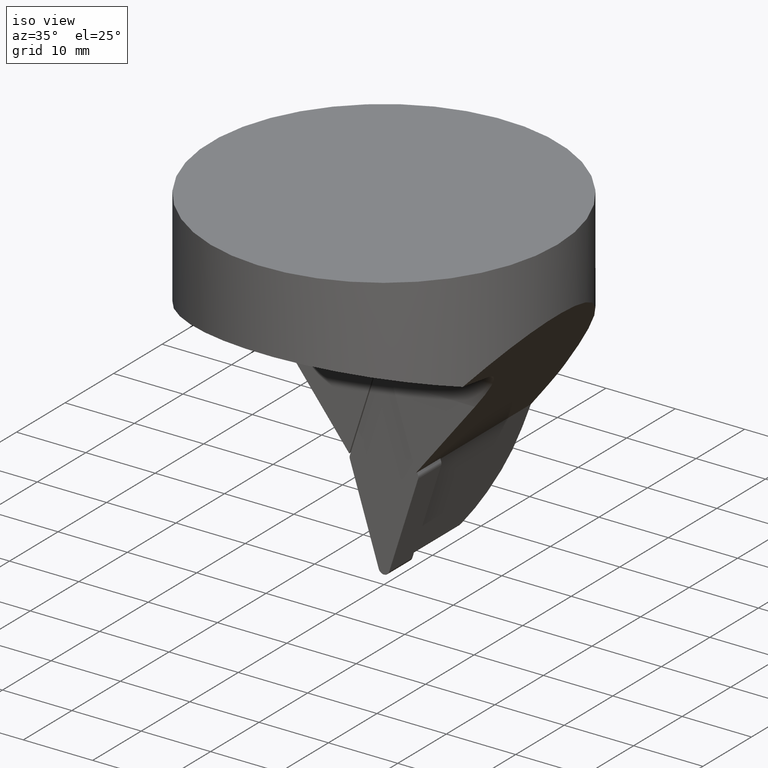
[diagram: clean part render]
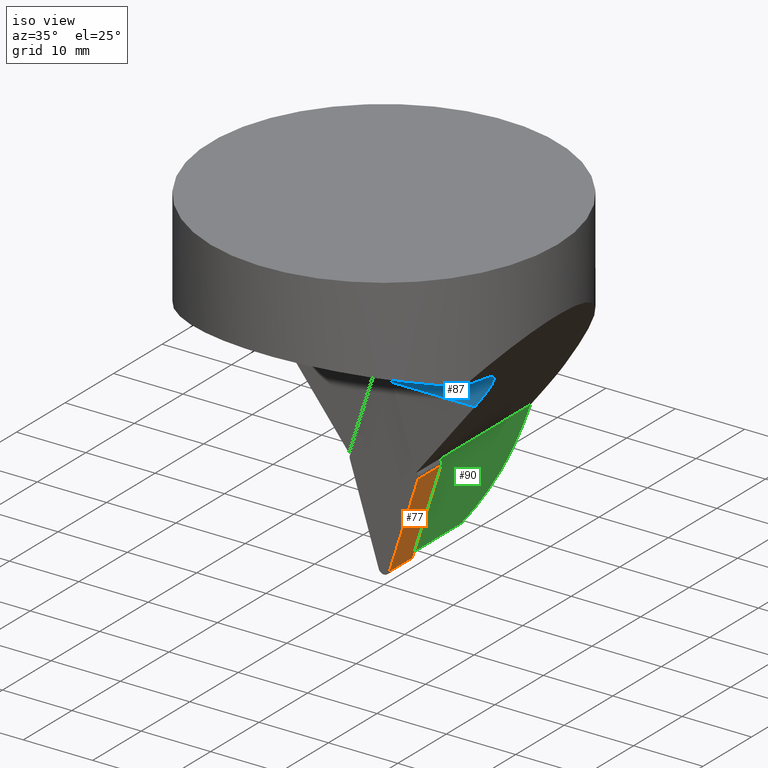
[diagram: same view with three faces highlighted in distinct colors, each labeled with its STEP entity id]
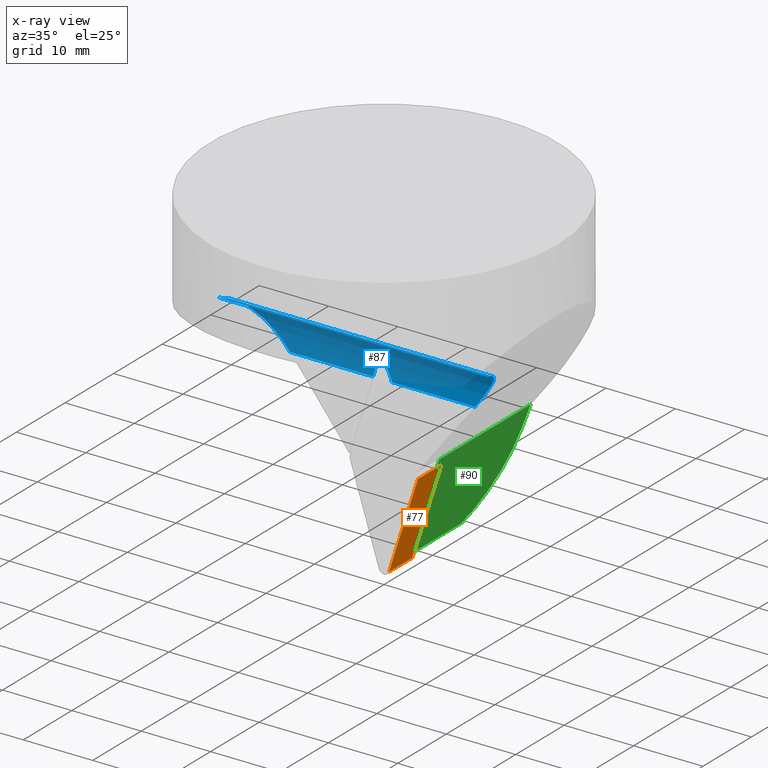
[diagram: x-ray of the same camera — body ghosted, the three highlighted faces saturated]
A machine part, iso view with three faces highlighted in distinct colors.
The next image is the same camera in x-ray (body ghosted, the three faces saturated) — at least one of them is partly hidden behind the body in this view.
Their STEP definitions:

[orange] entity #77 — the highlighted planar face has unit normal (0.9537, 0, -0.3007).
#77=ADVANCED_FACE('',(#108),#109,.T.);
#108=FACE_OUTER_BOUND('',#165,.T.);
#109=PLANE('',#166);
#165=EDGE_LOOP('',(#304,#305,#306,#307));
#166=AXIS2_PLACEMENT_3D('',#308,#309,#310);
#304=ORIENTED_EDGE('',*,*,#520,.T.);
#305=ORIENTED_EDGE('',*,*,#521,.F.);
#306=ORIENTED_EDGE('',*,*,#522,.T.);
#307=ORIENTED_EDGE('',*,*,#518,.T.);
#308=CARTESIAN_POINT('',(4.91777176897031,4.76000000000001,-35.9185646473837));
#309=DIRECTION('',(0.953716950698177,0.0,-0.300705799663012));
#310=DIRECTION('',(-0.300705799663012,0.0,-0.953716950698177));
#518=EDGE_CURVE('',#597,#595,#598,.T.);
#520=EDGE_CURVE('',#595,#600,#601,.T.);
#521=EDGE_CURVE('',#602,#600,#603,.T.);
#522=EDGE_CURVE('',#602,#597,#604,.T.);
#595=VERTEX_POINT('',#722);
#597=VERTEX_POINT('',#724);
#598=LINE('',#725,#726);
#600=VERTEX_POINT('',#728);
#601=LINE('',#729,#730);
#602=VERTEX_POINT('',#731);
#603=LINE('',#732,#733);
#604=LINE('',#734,#735);
#722=CARTESIAN_POINT('',(4.91777176897031,7.21644966006352E-015,-35.9185646473837));
#724=CARTESIAN_POINT('',(4.91777176897031,4.76000000000001,-35.9185646473837));
#725=CARTESIAN_POINT('',(4.91777176897031,4.76000000000001,-35.9185646473837));
#726=VECTOR('',#997,10.0);
#728=CARTESIAN_POINT('',(0.760071765850954,7.21644966006352E-015,-49.1051043594096));
#729=CARTESIAN_POINT('',(0.760071765850954,6.10622663543836E-015,-49.1051043594096));
#730=VECTOR('',#1001,10.0);
#731=CARTESIAN_POINT('',(0.760071765850954,4.76000000000001,-49.1051043594096));
#732=CARTESIAN_POINT('',(0.760071765850954,4.76000000000001,-49.1051043594096));
#733=VECTOR('',#1002,10.0);
#734=CARTESIAN_POINT('',(0.760071765850954,4.76000000000001,-49.1051043594096));
#735=VECTOR('',#1003,10.0);
#997=DIRECTION('',(0.0,-1.0,0.0));
#1001=DIRECTION('',(-0.300705799663012,-6.03937649266323E-032,-0.953716950698177));
#1002=DIRECTION('',(0.0,-1.0,0.0));
#1003=DIRECTION('',(0.300705799663012,6.03937649266323E-032,0.953716950698177));

[blue] entity #87 — the highlighted cylindrical surface (partial cylindrical patch) has radius 8 mm, axis along (1, -0, -0).
#87=ADVANCED_FACE('',(#128),#129,.F.);
#128=FACE_OUTER_BOUND('',#257,.T.);
#129=CYLINDRICAL_SURFACE('',#258,8.0);
#257=EDGE_LOOP('',(#381,#382,#383,#384,#385,#386,#387,#388));
#258=AXIS2_PLACEMENT_3D('',#389,#390,#391);
#381=ORIENTED_EDGE('',*,*,#544,.T.);
#382=ORIENTED_EDGE('',*,*,#548,.T.);
#383=ORIENTED_EDGE('',*,*,#551,.T.);
#384=ORIENTED_EDGE('',*,*,#552,.T.);
#385=ORIENTED_EDGE('',*,*,#553,.T.);
#386=ORIENTED_EDGE('',*,*,#554,.T.);
#387=ORIENTED_EDGE('',*,*,#555,.T.);
#388=ORIENTED_EDGE('',*,*,#556,.T.);
#389=CARTESIAN_POINT('',(4.13874011839544E-013,-8.29999999999999,-24.1386159038317));
#390=DIRECTION('',(1.0,-0.0,-0.0));
#391=DIRECTION('',(0.0,0.793353340291236,0.60876142900872));
#544=EDGE_CURVE('',#641,#639,#642,.T.);
#548=EDGE_CURVE('',#639,#646,#648,.T.);
#551=EDGE_CURVE('',#646,#651,#653,.T.);
#552=EDGE_CURVE('',#651,#654,#655,.T.);
#553=EDGE_CURVE('',#654,#656,#657,.T.);
#554=EDGE_CURVE('',#656,#658,#659,.T.);
#555=EDGE_CURVE('',#658,#660,#661,.T.);
#556=EDGE_CURVE('',#660,#641,#662,.T.);
#639=VERTEX_POINT('',#784);
#641=VERTEX_POINT('',#787);
#642=ELLIPSE('',#788,8.38823300112647,8.0);
#646=VERTEX_POINT('',#794);
#648=B_SPLINE_CURVE_WITH_KNOTS('',3,(#797,#798,#799,#800,#801,#802,#803,#804,#805,#806,#807,#808,#809,#810,#811,#812,#813,#814),.UNSPECIFIED.,.F.,.F.,(4,2,2,2,2,2,2,2,4),(0.149925910773781,0.156383037177052,0.188858211951973,0.218962825548049,0.249067439144125,0.279172052740201,0.309276666336277,0.341751841111199,0.34820896751447),.UNSPECIFIED.);
#651=VERTEX_POINT('',#818);
#653=ELLIPSE('',#821,8.38823300068628,8.0);
#654=VERTEX_POINT('',#822);
#655=LINE('',#823,#824);
#656=VERTEX_POINT('',#825);
#657=ELLIPSE('',#826,10.1521457205805,8.0);
#658=VERTEX_POINT('',#827);
#659=LINE('',#828,#829);
#660=VERTEX_POINT('',#830);
#661=ELLIPSE('',#831,10.1521457205808,8.0);
#662=LINE('',#832,#833);
#784=CARTESIAN_POINT('',(-0.760068665811215,-0.525907628008078,-22.2508956407267));
#787=CARTESIAN_POINT('',(-1.35526457851046,-0.299999999999998,-24.1386159038315));
#788=AXIS2_PLACEMENT_3D('',#1037,#1038,#1039);
#794=CARTESIAN_POINT('',(0.760071765893744,-0.525907628008079,-22.2508956407267));
#797=CARTESIAN_POINT('',(-0.760068665811215,-0.525907628008078,-22.2508956407267));
#798=CARTESIAN_POINT('',(-0.753369979562982,-0.531066506219202,-22.2296501222391));
#799=CARTESIAN_POINT('',(-0.74583105163664,-0.536263075239024,-22.2086304653977));
#800=CARTESIAN_POINT('',(-0.695493848666107,-0.567616760810326,-22.0839251523522));
#801=CARTESIAN_POINT('',(-0.632043323748769,-0.593888666783762,-21.9887291574988));
#802=CARTESIAN_POINT('',(-0.488442266034527,-0.635975399692769,-21.8433981256044));
#803=CARTESIAN_POINT('',(-0.400661124385253,-0.655021022895603,-21.7814599247199));
#804=CARTESIAN_POINT('',(-0.206638054254816,-0.681075760337488,-21.6985582553078));
#805=CARTESIAN_POINT('',(-0.100347161945656,-0.687924614971409,-21.6776591117197));
#806=CARTESIAN_POINT('',(0.100350262028184,-0.687924614971409,-21.6776591117197));
#807=CARTESIAN_POINT('',(0.206641154337344,-0.681075760337488,-21.6985582553078));
#808=CARTESIAN_POINT('',(0.400664224467781,-0.655021022895603,-21.7814599247199));
#809=CARTESIAN_POINT('',(0.488445366117055,-0.635975399692769,-21.8433981256044));
#810=CARTESIAN_POINT('',(0.632046423831297,-0.593888666783762,-21.9887291574988));
#811=CARTESIAN_POINT('',(0.695496948748635,-0.567616760810326,-22.0839251523522));
#812=CARTESIAN_POINT('',(0.745834151719168,-0.536263075239024,-22.2086304653977));
#813=CARTESIAN_POINT('',(0.75337307964551,-0.531066506219203,-22.2296501222391));
#814=CARTESIAN_POINT('',(0.760071765893744,-0.525907628008079,-22.2508956407267));
#818=CARTESIAN_POINT('',(1.35526767824757,-0.299999999999998,-24.1386159038315));
#821=AXIS2_PLACEMENT_3D('',#1045,#1046,#1047);
#822=CARTESIAN_POINT('',(13.3300338980246,-0.299999999999994,-24.1386159038319));
#823=CARTESIAN_POINT('',(-13.330034484173,-0.299999999999998,-24.1386159038315));
#824=VECTOR('',#1048,26.6600683821976);
#825=CARTESIAN_POINT('',(19.3673456128347,-6.22944763917982,-16.4112092935195));
#826=AXIS2_PLACEMENT_3D('',#1049,#1050,#1051);
#827=CARTESIAN_POINT('',(-19.3673461989833,-6.22944763917983,-16.4112092935189));
#828=CARTESIAN_POINT('',(19.3673456128347,-6.22944763917982,-16.4112092935195));
#829=VECTOR('',#1052,38.734691811818);
#830=CARTESIAN_POINT('',(-13.330034484173,-0.299999999999998,-24.1386159038315));
#831=AXIS2_PLACEMENT_3D('',#1053,#1054,#1055);
#832=CARTESIAN_POINT('',(-13.330034484173,-0.299999999999998,-24.1386159038315));
#833=VECTOR('',#1056,26.6600683821976);
#1037=CARTESIAN_POINT('',(-1.35526457851053,-8.29999999999999,-24.1386159038317));
#1038=DIRECTION('',(0.953716950748228,0.0,-0.300705799504268));
#1039=DIRECTION('',(0.300705799504268,3.30887036779994E-016,0.953716950748228));
#1045=CARTESIAN_POINT('',(1.35526767824763,-8.29999999999999,-24.1386159038317));
#1046=DIRECTION('',(-0.953716950798277,-1.17554690176774E-032,-0.300705799345533));
#1047=DIRECTION('',(-0.300705799345533,1.98532222078415E-016,0.953716950798277));
#1048=DIRECTION('',(1.0,0.0,0.0));
#1049=CARTESIAN_POINT('',(13.3300338980246,-8.29999999999999,-24.1386159038319));
#1050=DIRECTION('',(0.788010753606722,-1.31871149599113E-016,-0.615661475325658));
#1051=DIRECTION('',(0.615661475325658,4.82713864889296E-016,0.788010753606722));
#1052=DIRECTION('',(-1.0,0.0,0.0));
#1053=CARTESIAN_POINT('',(-13.330034484173,-8.29999999999999,-24.1386159038315));
#1054=DIRECTION('',(-0.788010753606722,1.00731325110704E-016,-0.615661475325658));
#1055=DIRECTION('',(-0.615661475325658,-4.91730549599113E-016,0.788010753606722));
#1056=DIRECTION('',(1.0,0.0,0.0));

[green] entity #90 — the highlighted planar face has unit normal (-0.9537, 0, 0.3007).
#90=ADVANCED_FACE('',(#134),#135,.F.);
#134=FACE_OUTER_BOUND('',#263,.T.);
#135=PLANE('',#264);
#263=EDGE_LOOP('',(#411,#412,#413,#414,#415));
#264=AXIS2_PLACEMENT_3D('',#416,#417,#418);
#411=ORIENTED_EDGE('',*,*,#539,.T.);
#412=ORIENTED_EDGE('',*,*,#563,.F.);
#413=ORIENTED_EDGE('',*,*,#564,.F.);
#414=ORIENTED_EDGE('',*,*,#565,.F.);
#415=ORIENTED_EDGE('',*,*,#558,.T.);
#416=CARTESIAN_POINT('',(-7.22280345365487,-1.1381589884931E-015,-72.8852621022449));
#417=DIRECTION('',(-0.953716950748227,1.48403700808922E-016,0.300705799504273));
#418=DIRECTION('',(0.300705799504273,6.59044822310593E-033,0.953716950748227));
#539=EDGE_CURVE('',#625,#631,#633,.T.);
#558=EDGE_CURVE('',#664,#625,#665,.T.);
#563=EDGE_CURVE('',#673,#631,#674,.T.);
#564=EDGE_CURVE('',#675,#673,#676,.T.);
#565=EDGE_CURVE('',#664,#675,#677,.T.);
#625=VERTEX_POINT('',#764);
#631=VERTEX_POINT('',#773);
#633=LINE('',#775,#776);
#664=VERTEX_POINT('',#836);
#665=LINE('',#837,#838);
#673=VERTEX_POINT('',#847);
#674=LINE('',#848,#849);
#675=VERTEX_POINT('',#850);
#676=B_SPLINE_CURVE_WITH_KNOTS('',3,(#851,#852,#853,#854,#855,#856,#857,#858,#859,#860,#861,#862,#863,#864,#865,#866,#867,#868,#869,#870,#871,#872,#873,#874,#875,#876),.UNSPECIFIED.,.F.,.F.,(4,2,2,2,2,2,2,2,2,2,2,2,4),(-28.6007282508324,-28.4422377030003,-26.7706772018078,-25.1187501837178,-23.4668231656277,-21.8148961475377,-20.1629691294477,-18.5470699180555,-16.9311707066633,-15.3152714952712,-13.699372283879,-12.0899666676129,-10.5423890887149),.UNSPECIFIED.);
#677=ELLIPSE('',#877,103.925919639352,25.9074131871865);
#764=CARTESIAN_POINT('',(4.63994938400572,4.76000000000001,-35.2614168606011));
#773=CARTESIAN_POINT('',(0.381486487225292,4.76000000000001,-48.7675356500865));
#775=CARTESIAN_POINT('',(-1.56094414836045,4.76000000000001,-54.9281385578613));
#776=VECTOR('',#1030,10.0);
#836=CARTESIAN_POINT('',(4.63994938400572,23.6208607958629,-35.2614168606011));
#837=CARTESIAN_POINT('',(4.63994938400572,23.6208607958629,-35.2614168606011));
#838=VECTOR('',#1058,23.9208607958629);
#847=CARTESIAN_POINT('',(0.381486487226791,15.4650561805661,-48.7675356500818));
#848=CARTESIAN_POINT('',(0.381486487225292,15.4650561805661,-48.7675356500865));
#849=VECTOR('',#1069,15.7650561805661);
#850=CARTESIAN_POINT('',(3.64056017313714,23.2298317426871,-38.4310744873298));
#851=CARTESIAN_POINT('',(3.64056017313714,23.2298317426871,-38.4310744873298));
#852=CARTESIAN_POINT('',(3.6237203709115,23.2229384607799,-38.4844835165414));
#853=CARTESIAN_POINT('',(3.60692114292921,23.2157221932447,-38.5377638606938));
#854=CARTESIAN_POINT('',(3.4134607249476,23.128727574613,-39.1513419168273));
#855=CARTESIAN_POINT('',(3.24174636554198,23.0133760801185,-39.6959502866093));
#856=CARTESIAN_POINT('',(2.91956605907739,22.7316701898305,-40.7177756720162));
#857=CARTESIAN_POINT('',(2.75489327317212,22.5537106533856,-41.240051023884));
#858=CARTESIAN_POINT('',(2.42749348874591,22.1198937081788,-42.278430478465));
#859=CARTESIAN_POINT('',(2.26476808574926,21.8640229829863,-42.7945295208216));
#860=CARTESIAN_POINT('',(1.95085004369419,21.2842760278625,-43.7901503513715));
#861=CARTESIAN_POINT('',(1.79954886439551,20.9601950355606,-44.2700163852266));
#862=CARTESIAN_POINT('',(1.51598538929437,20.2647134294372,-45.1693648289975));
#863=CARTESIAN_POINT('',(1.38372201037798,19.8933176993985,-45.5888506741117));
#864=CARTESIAN_POINT('',(1.14623844798367,19.1431112095612,-46.3420523062482));
#865=CARTESIAN_POINT('',(1.0303103109962,18.732481969894,-46.7097293829653));
#866=CARTESIAN_POINT('',(0.81117873228896,17.84746040181,-47.4047259590268));
#867=CARTESIAN_POINT('',(0.707978422919302,17.3730594963973,-47.7320355238259));
#868=CARTESIAN_POINT('',(0.521104620715927,16.3840323966847,-48.324723503592));
#869=CARTESIAN_POINT('',(0.437367092966997,15.8690604502491,-48.5903050113632));
#870=CARTESIAN_POINT('',(0.292908040437377,14.8284152149665,-49.0484705915205));
#871=CARTESIAN_POINT('',(0.23218489715349,14.3027444108167,-49.2410597971428));
#872=CARTESIAN_POINT('',(0.134072800256809,13.2783472284877,-49.5522316137093));
#873=CARTESIAN_POINT('',(0.0923178997709684,12.7349121277814,-49.6846612390634));
#874=CARTESIAN_POINT('',(0.0306738892864051,11.6342757823624,-49.880171062313));
#875=CARTESIAN_POINT('',(0.00999914981965922,11.0784051042664,-49.945742958546));
#876=CARTESIAN_POINT('',(-2.93074000941929E-007,10.5202266848441,-49.977457139654));
#877=AXIS2_PLACEMENT_3D('',#1070,#1071,#1072);
#1030=DIRECTION('',(-0.300705799504273,-6.03937649297403E-032,-0.953716950748227));
#1058=DIRECTION('',(0.0,-1.0,0.0));
#1069=DIRECTION('',(0.0,-1.0,0.0));
#1070=CARTESIAN_POINT('',(17.4768093588615,2.79069708909036E-015,5.45190151431585));
#1071=DIRECTION('',(-0.953716950748227,1.48403700808922E-016,0.300705799504273));
#1072=DIRECTION('',(-0.300705799504273,1.38633310293717E-016,-0.953716950748227));